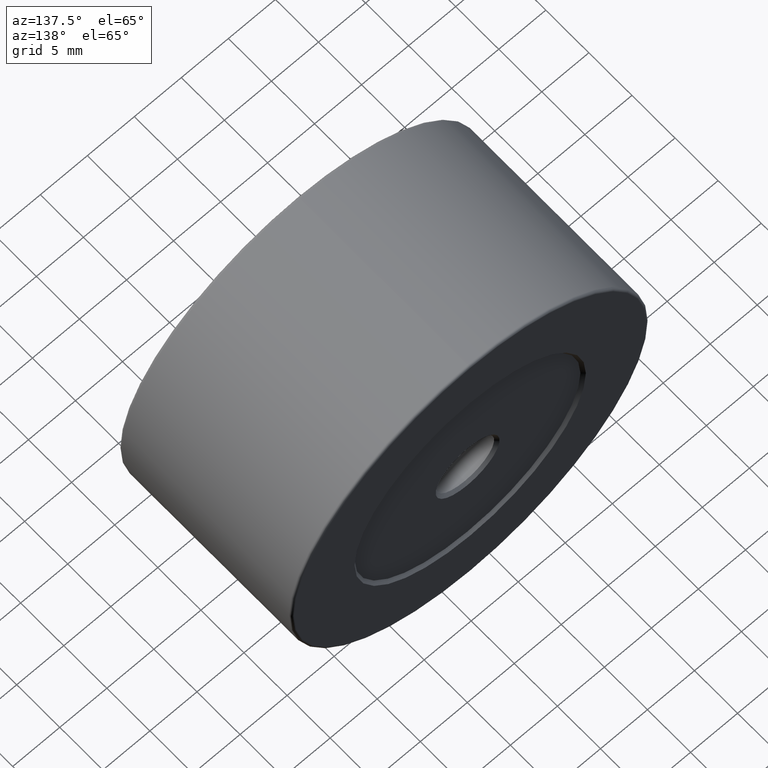
[diagram: clean part render]
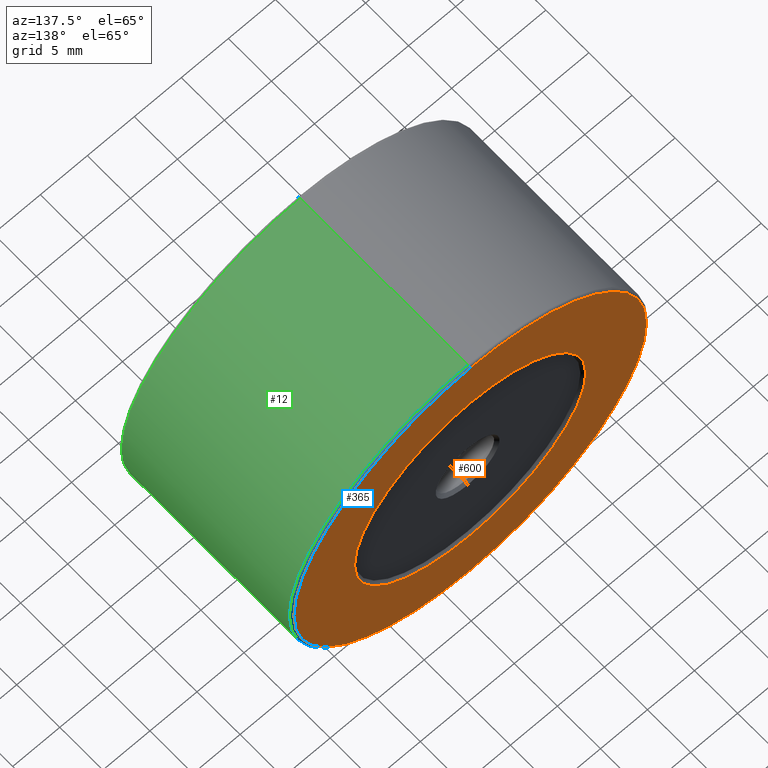
[diagram: same view with three faces highlighted in distinct colors, each labeled with its STEP entity id]
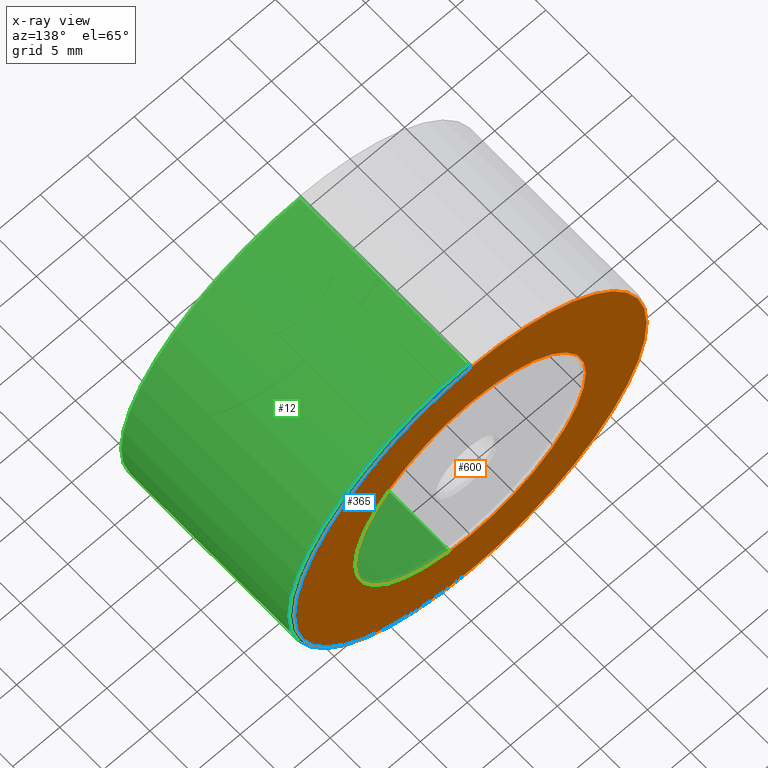
[diagram: x-ray of the same camera — body ghosted, the three highlighted faces saturated]
A machine part, auxiliary view with three faces highlighted in distinct colors.
The next image is the same camera in x-ray (body ghosted, the three faces saturated) — at least one of them is partly hidden behind the body in this view.
Their STEP definitions:

[orange] entity #600 — the highlighted planar face has unit normal (0, 1, 0).
#11 = PLANE ( 'NONE',  #472 ) ;
#28 = CIRCLE ( 'NONE', #237, 12.30000000000001315 ) ;
#47 = VERTEX_POINT ( 'NONE', #591 ) ;
#53 = FACE_OUTER_BOUND ( 'NONE', #246, .T. ) ;
#87 = DIRECTION ( 'NONE',  ( 0.000000000000000000, 1.000000000000000000, 0.000000000000000000 ) ) ;
#113 = CIRCLE ( 'NONE', #279, 18.74999999999999645 ) ;
#148 = DIRECTION ( 'NONE',  ( 0.000000000000000000, 0.000000000000000000, 1.000000000000000000 ) ) ;
#159 = DIRECTION ( 'NONE',  ( -0.000000000000000000, -1.000000000000000000, -0.000000000000000000 ) ) ;
#175 = DIRECTION ( 'NONE',  ( 0.000000000000000000, 0.000000000000000000, 1.000000000000000000 ) ) ;
#192 = AXIS2_PLACEMENT_3D ( 'NONE', #569, #159, #332 ) ;
#198 = VERTEX_POINT ( 'NONE', #258 ) ;
#205 = DIRECTION ( 'NONE',  ( 0.000000000000000000, 1.000000000000000000, 0.000000000000000000 ) ) ;
#237 = AXIS2_PLACEMENT_3D ( 'NONE', #450, #594, #175 ) ;
#243 = FACE_BOUND ( 'NONE', #322, .T. ) ;
#246 = EDGE_LOOP ( 'NONE', ( #559, #372 ) ) ;
#258 = CARTESIAN_POINT ( 'NONE',  ( -7.546808913101046734, 7.106404872697272168, 25.69999999999998508 ) ) ;
#271 = CIRCLE ( 'NONE', #481, 18.74999999999999645 ) ;
#279 = AXIS2_PLACEMENT_3D ( 'NONE', #414, #87, #606 ) ;
#295 = DIRECTION ( 'NONE',  ( 0.000000000000000000, -0.000000000000000000, 1.000000000000000000 ) ) ;
#322 = EDGE_LOOP ( 'NONE', ( #589, #613 ) ) ;
#332 = DIRECTION ( 'NONE',  ( 0.000000000000000000, 0.000000000000000000, 1.000000000000000000 ) ) ;
#339 = CARTESIAN_POINT ( 'NONE',  ( -7.546808913101048510, 7.106404872697272168, 50.30000000000001137 ) ) ;
#372 = ORIENTED_EDGE ( 'NONE', *, *, #528, .T. ) ;
#380 = EDGE_CURVE ( 'NONE', #47, #452, #113, .T. ) ;
#388 = DIRECTION ( 'NONE',  ( 0.000000000000000000, 1.000000000000000000, 0.000000000000000000 ) ) ;
#392 = CARTESIAN_POINT ( 'NONE',  ( -7.546808913101048510, 7.106404872697272168, 38.00000000000000000 ) ) ;
#414 = CARTESIAN_POINT ( 'NONE',  ( -7.546808913101048510, 7.106404872697272168, 38.00000000000000000 ) ) ;
#437 = CARTESIAN_POINT ( 'NONE',  ( -7.546808913101048510, 7.106404872697272168, 38.00000000000000000 ) ) ;
#450 = CARTESIAN_POINT ( 'NONE',  ( -7.546808913101048510, 7.106404872697272168, 38.00000000000000000 ) ) ;
#452 = VERTEX_POINT ( 'NONE', #496 ) ;
#453 = CIRCLE ( 'NONE', #192, 12.30000000000001315 ) ;
#460 = EDGE_CURVE ( 'NONE', #198, #508, #28, .T. ) ;
#472 = AXIS2_PLACEMENT_3D ( 'NONE', #392, #205, #295 ) ;
#481 = AXIS2_PLACEMENT_3D ( 'NONE', #437, #388, #148 ) ;
#496 = CARTESIAN_POINT ( 'NONE',  ( -7.546808913101045846, 7.106404872697272168, 19.25000000000000000 ) ) ;
#507 = EDGE_CURVE ( 'NONE', #508, #198, #453, .T. ) ;
#508 = VERTEX_POINT ( 'NONE', #339 ) ;
#528 = EDGE_CURVE ( 'NONE', #452, #47, #271, .T. ) ;
#559 = ORIENTED_EDGE ( 'NONE', *, *, #380, .T. ) ;
#569 = CARTESIAN_POINT ( 'NONE',  ( -7.546808913101048510, 7.106404872697272168, 38.00000000000000000 ) ) ;
#589 = ORIENTED_EDGE ( 'NONE', *, *, #507, .T. ) ;
#591 = CARTESIAN_POINT ( 'NONE',  ( -7.546808913101048510, 7.106404872697272168, 56.74999999999999289 ) ) ;
#594 = DIRECTION ( 'NONE',  ( -0.000000000000000000, -1.000000000000000000, -0.000000000000000000 ) ) ;
#600 = ADVANCED_FACE ( 'NONE', ( #53, #243 ), #11, .T. ) ;
#606 = DIRECTION ( 'NONE',  ( 0.000000000000000000, 0.000000000000000000, 1.000000000000000000 ) ) ;
#613 = ORIENTED_EDGE ( 'NONE', *, *, #460, .T. ) ;

[blue] entity #365 — the highlighted toroidal blend (fillet) surface has major radius 18.75 mm and minor (blend) radius 0.25 mm.
#22 = CARTESIAN_POINT ( 'NONE',  ( -7.546808913101048510, 6.856404872697272168, 38.00000000000000000 ) ) ;
#36 = ORIENTED_EDGE ( 'NONE', *, *, #380, .F. ) ;
#47 = VERTEX_POINT ( 'NONE', #591 ) ;
#64 = AXIS2_PLACEMENT_3D ( 'NONE', #232, #248, #293 ) ;
#73 = AXIS2_PLACEMENT_3D ( 'NONE', #603, #187, #422 ) ;
#85 = AXIS2_PLACEMENT_3D ( 'NONE', #592, #371, #132 ) ;
#87 = DIRECTION ( 'NONE',  ( 0.000000000000000000, 1.000000000000000000, 0.000000000000000000 ) ) ;
#91 = ORIENTED_EDGE ( 'NONE', *, *, #99, .F. ) ;
#96 = CARTESIAN_POINT ( 'NONE',  ( -7.546808913101044958, 6.856404872697272168, 19.00000000000000000 ) ) ;
#99 = EDGE_CURVE ( 'NONE', #174, #47, #173, .T. ) ;
#109 = DIRECTION ( 'NONE',  ( 0.000000000000000000, 0.000000000000000000, 1.000000000000000000 ) ) ;
#113 = CIRCLE ( 'NONE', #279, 18.74999999999999645 ) ;
#132 = DIRECTION ( 'NONE',  ( 0.000000000000000000, 0.000000000000000000, 1.000000000000000000 ) ) ;
#173 = CIRCLE ( 'NONE', #64, 0.2500000000000002220 ) ;
#174 = VERTEX_POINT ( 'NONE', #298 ) ;
#180 = ORIENTED_EDGE ( 'NONE', *, *, #189, .F. ) ;
#181 = CIRCLE ( 'NONE', #73, 0.2500000000000002220 ) ;
#187 = DIRECTION ( 'NONE',  ( 1.000000000000000000, -0.000000000000000000, 1.224646799147353207E-16 ) ) ;
#189 = EDGE_CURVE ( 'NONE', #416, #174, #610, .T. ) ;
#232 = CARTESIAN_POINT ( 'NONE',  ( -7.546808913101048510, 6.856404872697272168, 56.74999999999999289 ) ) ;
#248 = DIRECTION ( 'NONE',  ( -1.000000000000000000, 0.000000000000000000, 0.000000000000000000 ) ) ;
#279 = AXIS2_PLACEMENT_3D ( 'NONE', #414, #87, #606 ) ;
#286 = FACE_OUTER_BOUND ( 'NONE', #315, .T. ) ;
#293 = DIRECTION ( 'NONE',  ( 0.000000000000000000, 0.000000000000000000, 1.000000000000000000 ) ) ;
#298 = CARTESIAN_POINT ( 'NONE',  ( -7.546808913101048510, 6.856404872697272168, 56.99999999999999289 ) ) ;
#308 = DIRECTION ( 'NONE',  ( -0.000000000000000000, -1.000000000000000000, -0.000000000000000000 ) ) ;
#315 = EDGE_LOOP ( 'NONE', ( #180, #596, #36, #91 ) ) ;
#347 = AXIS2_PLACEMENT_3D ( 'NONE', #22, #308, #109 ) ;
#354 = EDGE_CURVE ( 'NONE', #416, #452, #181, .T. ) ;
#365 = ADVANCED_FACE ( 'NONE', ( #286 ), #373, .T. ) ;
#371 = DIRECTION ( 'NONE',  ( 0.000000000000000000, 1.000000000000000000, 0.000000000000000000 ) ) ;
#373 = TOROIDAL_SURFACE ( 'NONE', #85, 18.75000000000000000, 0.2500000000000000000 ) ;
#380 = EDGE_CURVE ( 'NONE', #47, #452, #113, .T. ) ;
#414 = CARTESIAN_POINT ( 'NONE',  ( -7.546808913101048510, 7.106404872697272168, 38.00000000000000000 ) ) ;
#416 = VERTEX_POINT ( 'NONE', #96 ) ;
#422 = DIRECTION ( 'NONE',  ( 0.000000000000000000, 0.000000000000000000, -1.000000000000000000 ) ) ;
#452 = VERTEX_POINT ( 'NONE', #496 ) ;
#496 = CARTESIAN_POINT ( 'NONE',  ( -7.546808913101045846, 7.106404872697272168, 19.25000000000000000 ) ) ;
#591 = CARTESIAN_POINT ( 'NONE',  ( -7.546808913101048510, 7.106404872697272168, 56.74999999999999289 ) ) ;
#592 = CARTESIAN_POINT ( 'NONE',  ( -7.546808913101048510, 6.856404872697272168, 38.00000000000000000 ) ) ;
#596 = ORIENTED_EDGE ( 'NONE', *, *, #354, .T. ) ;
#603 = CARTESIAN_POINT ( 'NONE',  ( -7.546808913101045846, 6.856404872697272168, 19.25000000000000000 ) ) ;
#606 = DIRECTION ( 'NONE',  ( 0.000000000000000000, 0.000000000000000000, 1.000000000000000000 ) ) ;
#610 = CIRCLE ( 'NONE', #347, 18.99999999999999645 ) ;

[green] entity #12 — the highlighted cylindrical surface (partial cylindrical patch) has radius 19 mm, axis along (-0, -1, -0).
#2 = ORIENTED_EDGE ( 'NONE', *, *, #323, .T. ) ;
#12 = ADVANCED_FACE ( 'NONE', ( #376 ), #329, .T. ) ;
#22 = CARTESIAN_POINT ( 'NONE',  ( -7.546808913101048510, 6.856404872697272168, 38.00000000000000000 ) ) ;
#30 = EDGE_LOOP ( 'NONE', ( #81, #2, #598, #518 ) ) ;
#32 = CARTESIAN_POINT ( 'NONE',  ( -7.546808913101048510, -12.64359512730272783, 38.00000000000000000 ) ) ;
#38 = VERTEX_POINT ( 'NONE', #213 ) ;
#81 = ORIENTED_EDGE ( 'NONE', *, *, #189, .T. ) ;
#96 = CARTESIAN_POINT ( 'NONE',  ( -7.546808913101044958, 6.856404872697272168, 19.00000000000000000 ) ) ;
#97 = DIRECTION ( 'NONE',  ( -0.000000000000000000, -1.000000000000000000, -0.000000000000000000 ) ) ;
#109 = DIRECTION ( 'NONE',  ( 0.000000000000000000, 0.000000000000000000, 1.000000000000000000 ) ) ;
#127 = CARTESIAN_POINT ( 'NONE',  ( -7.546808913101045846, 7.106404872697272168, 56.99999999999999289 ) ) ;
#174 = VERTEX_POINT ( 'NONE', #298 ) ;
#189 = EDGE_CURVE ( 'NONE', #416, #174, #610, .T. ) ;
#213 = CARTESIAN_POINT ( 'NONE',  ( -7.546808913101048510, -12.64359512730272783, 19.00000000000000000 ) ) ;
#222 = DIRECTION ( 'NONE',  ( -0.000000000000000000, -1.000000000000000000, -0.000000000000000000 ) ) ;
#283 = DIRECTION ( 'NONE',  ( -0.000000000000000000, -1.000000000000000000, -0.000000000000000000 ) ) ;
#298 = CARTESIAN_POINT ( 'NONE',  ( -7.546808913101048510, 6.856404872697272168, 56.99999999999999289 ) ) ;
#308 = DIRECTION ( 'NONE',  ( -0.000000000000000000, -1.000000000000000000, -0.000000000000000000 ) ) ;
#314 = CARTESIAN_POINT ( 'NONE',  ( -7.546808913101048510, 7.106404872697272168, 19.00000000000000000 ) ) ;
#318 = LINE ( 'NONE', #314, #490 ) ;
#323 = EDGE_CURVE ( 'NONE', #174, #494, #499, .T. ) ;
#329 = CYLINDRICAL_SURFACE ( 'NONE', #426, 19.00000000000000000 ) ;
#335 = CARTESIAN_POINT ( 'NONE',  ( -7.546808913101045846, -12.64359512730272783, 56.99999999999999289 ) ) ;
#347 = AXIS2_PLACEMENT_3D ( 'NONE', #22, #308, #109 ) ;
#357 = DIRECTION ( 'NONE',  ( 0.000000000000000000, 1.000000000000000000, 0.000000000000000000 ) ) ;
#358 = CIRCLE ( 'NONE', #584, 18.99999999999999645 ) ;
#376 = FACE_OUTER_BOUND ( 'NONE', #30, .T. ) ;
#389 = DIRECTION ( 'NONE',  ( 0.000000000000000000, 0.000000000000000000, -1.000000000000000000 ) ) ;
#400 = VECTOR ( 'NONE', #222, 1000.000000000000000 ) ;
#416 = VERTEX_POINT ( 'NONE', #96 ) ;
#426 = AXIS2_PLACEMENT_3D ( 'NONE', #565, #97, #389 ) ;
#429 = EDGE_CURVE ( 'NONE', #494, #38, #358, .T. ) ;
#442 = EDGE_CURVE ( 'NONE', #416, #38, #318, .T. ) ;
#490 = VECTOR ( 'NONE', #283, 1000.000000000000000 ) ;
#494 = VERTEX_POINT ( 'NONE', #335 ) ;
#499 = LINE ( 'NONE', #127, #400 ) ;
#518 = ORIENTED_EDGE ( 'NONE', *, *, #442, .F. ) ;
#549 = DIRECTION ( 'NONE',  ( 0.000000000000000000, 0.000000000000000000, 1.000000000000000000 ) ) ;
#565 = CARTESIAN_POINT ( 'NONE',  ( -7.546808913101048510, 7.106404872697272168, 38.00000000000000000 ) ) ;
#584 = AXIS2_PLACEMENT_3D ( 'NONE', #32, #357, #549 ) ;
#598 = ORIENTED_EDGE ( 'NONE', *, *, #429, .T. ) ;
#610 = CIRCLE ( 'NONE', #347, 18.99999999999999645 ) ;